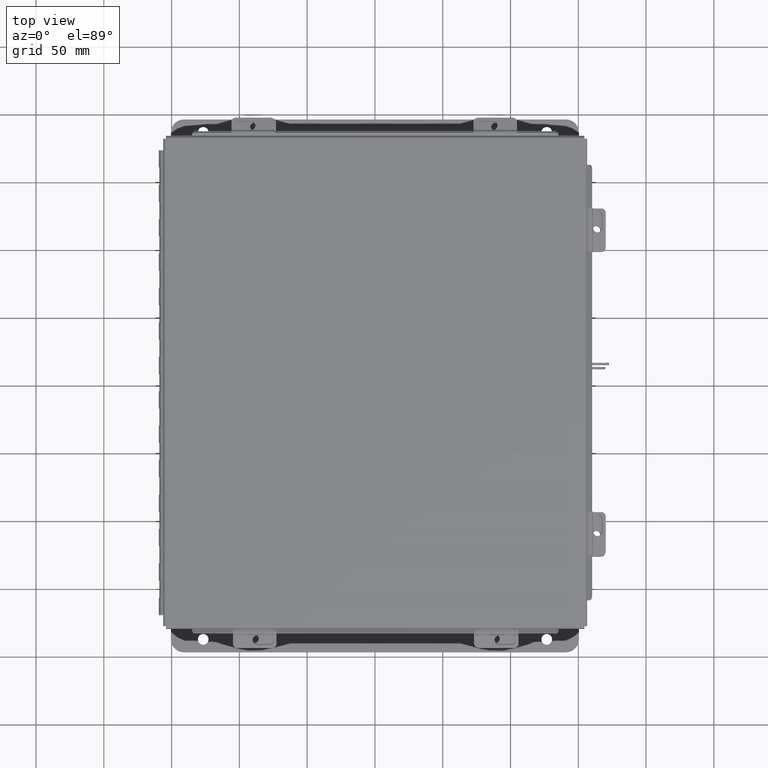
[diagram: clean part render]
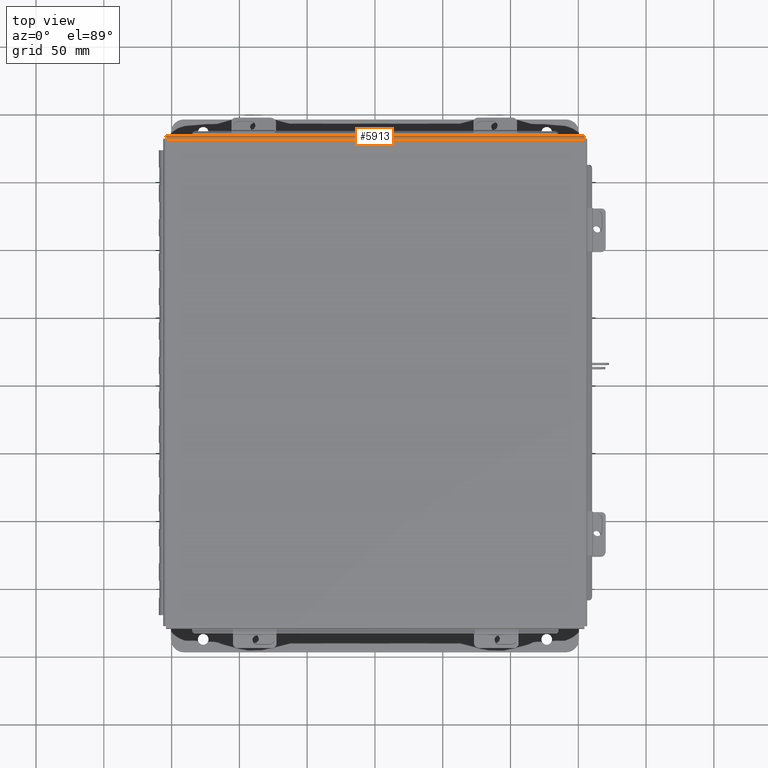
[diagram: same view with one face highlighted and labeled with its STEP entity id]
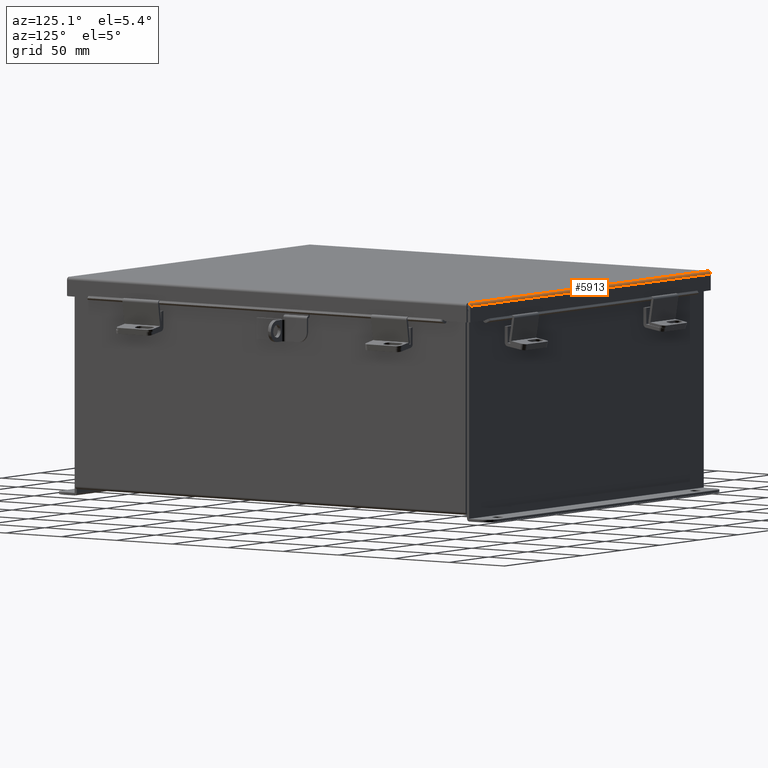
[diagram: same view with one face highlighted and labeled with its STEP entity id]
A machine part, top view. The second image highlights one B-rep face of the part: STEP entity #5913.
A second angle (auxiliary view) of the same face is appended — the face is thin or edge-on in the first view.
In plain terms, the highlighted cylindrical surface (edge-blend (fillet) strip) has radius 2.2276 mm, axis along (1, -0, 0).
Its self-contained STEP definition (entity closure, byte-faithful):
#58 = DIRECTION ( 'NONE',  ( 1.000000000000000000, 0.0000000000000000000, 0.0000000000000000000 ) ) ;
#271 = VECTOR ( 'NONE', #58, 39.37007874015748100 ) ;
#510 = EDGE_CURVE ( 'NONE', #15471, #7963, #6730, .T. ) ;
#733 = CARTESIAN_POINT ( 'NONE',  ( 6.070526310729377400, 7.112717384578527200, -0.06363106625866835100 ) ) ;
#957 = CARTESIAN_POINT ( 'NONE',  ( -6.072502621458756500, 7.145181066258665200, -0.03116738457852799900 ) ) ;
#1290 = CARTESIAN_POINT ( 'NONE',  ( 6.069044077682344000, 7.080029903154992300, -0.07469999999999994700 ) ) ;
#1891 = B_SPLINE_CURVE_WITH_KNOTS ( 'NONE', 3,
 ( #10952, #1290, #9078, #733, #4870, #11393, #10318, #8895, #6215, #3533 ),
 .UNSPECIFIED., .F., .F.,
 ( 4, 2, 2, 2, 4 ),
 ( 0.0000000000000000000, 0.2500000000000000000, 0.5000000000000000000, 0.7500000000000000000, 1.000000000000000000 ),
 .UNSPECIFIED. ) ;
#2051 = EDGE_CURVE ( 'NONE', #18970, #2584, #1891, .T. ) ;
#2253 = CARTESIAN_POINT ( 'NONE',  ( -6.070526310729379200, 7.112717384578528100, -0.06363106625866837800 ) ) ;
#2584 = VERTEX_POINT ( 'NONE', #9789 ) ;
#2722 = EDGE_CURVE ( 'NONE', #7963, #18970, #8085, .T. ) ;
#3533 = CARTESIAN_POINT ( 'NONE',  ( 6.074478932188134700, 7.156249999999999100, 0.01299999999999977400 ) ) ;
#4684 = CARTESIAN_POINT ( 'NONE',  ( -6.074478932188137400, 7.156249999999999100, 0.01299999999999978100 ) ) ;
#4870 = CARTESIAN_POINT ( 'NONE',  ( 6.071020388411723100, 7.122445747341799900, -0.05713078207832041800 ) ) ;
#5913 = ADVANCED_FACE ( 'NONE', ( #13544 ), #17010, .T. ) ;
#6215 = CARTESIAN_POINT ( 'NONE',  ( 6.073984854505790800, 7.156249999999999100, 0.001520096845007091700 ) ) ;
#6246 = ORIENTED_EDGE ( 'NONE', *, *, #510, .F. ) ;
#6264 = ORIENTED_EDGE ( 'NONE', *, *, #2051, .F. ) ;
#6473 = ORIENTED_EDGE ( 'NONE', *, *, #2722, .F. ) ;
#6708 = DIRECTION ( 'NONE',  ( -1.000000000000000000, -0.0000000000000000000, -0.0000000000000000000 ) ) ;
#6730 = B_SPLINE_CURVE_WITH_KNOTS ( 'NONE', 3,
 ( #10138, #16083, #7086, #957, #9818, #18769, #2253, #15868, #16140, #8532 ),
 .UNSPECIFIED., .F., .F.,
 ( 4, 2, 2, 2, 4 ),
 ( 0.0000000000000000000, 0.2500000000000000000, 0.5000000000000000000, 0.7500000000000000000, 1.000000000000000000 ),
 .UNSPECIFIED. ) ;
#7086 = CARTESIAN_POINT ( 'NONE',  ( -6.073490776823450500, 7.153967403743810600, -0.009955289458309056500 ) ) ;
#7335 = CARTESIAN_POINT ( 'NONE',  ( 6.156249999999998200, 7.156249999999999100, 0.01299999999999978100 ) ) ;
#7453 = DIRECTION ( 'NONE',  ( 0.0000000000000000000, 1.000000000000000000, -4.477801015840783100E-015 ) ) ;
#7732 = CARTESIAN_POINT ( 'NONE',  ( -6.074478932188137400, 7.068549999999999200, -0.07469999999999993300 ) ) ;
#7963 = VERTEX_POINT ( 'NONE', #13939 ) ;
#8085 = LINE ( 'NONE', #7732, #271 ) ;
#8421 = AXIS2_PLACEMENT_3D ( 'NONE', #16879, #6708, #7453 ) ;
#8532 = CARTESIAN_POINT ( 'NONE',  ( -6.068550000000000100, 7.068549999999999200, -0.07469999999999993300 ) ) ;
#8767 = DIRECTION ( 'NONE',  ( 1.000000000000000000, -2.487713722829918300E-032, 1.089533968265403200E-046 ) ) ;
#8895 = CARTESIAN_POINT ( 'NONE',  ( 6.073490776823446100, 7.153967403743811500, -0.009955289458309054700 ) ) ;
#9078 = CARTESIAN_POINT ( 'NONE',  ( 6.069538155364690500, 7.091505289458312200, -0.07241740374381121200 ) ) ;
#9789 = CARTESIAN_POINT ( 'NONE',  ( 6.074478932188134700, 7.156249999999999100, 0.01299999999999977400 ) ) ;
#9818 = CARTESIAN_POINT ( 'NONE',  ( -6.072008543776413500, 7.138680782078320200, -0.04089574734180010500 ) ) ;
#10138 = CARTESIAN_POINT ( 'NONE',  ( -6.074478932188137400, 7.156249999999999100, 0.01299999999999978100 ) ) ;
#10190 = LINE ( 'NONE', #7335, #17574 ) ;
#10318 = CARTESIAN_POINT ( 'NONE',  ( 6.072502621458756500, 7.145181066258667000, -0.03116738457852800300 ) ) ;
#10952 = CARTESIAN_POINT ( 'NONE',  ( 6.068550000000000100, 7.068549999999999200, -0.07469999999999880900 ) ) ;
#11393 = CARTESIAN_POINT ( 'NONE',  ( 6.072008543776412600, 7.138680782078320200, -0.04089574734180011200 ) ) ;
#11637 = EDGE_CURVE ( 'NONE', #15471, #2584, #10190, .T. ) ;
#13544 = FACE_OUTER_BOUND ( 'NONE', #17575, .T. ) ;
#13939 = CARTESIAN_POINT ( 'NONE',  ( -6.068550000000000100, 7.068549999999999200, -0.07469999999999993300 ) ) ;
#15471 = VERTEX_POINT ( 'NONE', #4684 ) ;
#15868 = CARTESIAN_POINT ( 'NONE',  ( -6.069538155364689700, 7.091505289458308600, -0.07241740374381121200 ) ) ;
#16083 = CARTESIAN_POINT ( 'NONE',  ( -6.073984854505791700, 7.156249999999999100, 0.001520096845007091700 ) ) ;
#16140 = CARTESIAN_POINT ( 'NONE',  ( -6.069044077682344900, 7.080029903154992300, -0.07469999999999994700 ) ) ;
#16879 = CARTESIAN_POINT ( 'NONE',  ( -6.074478932188137400, 7.068549999999999200, 0.01300000000000016400 ) ) ;
#17010 = CYLINDRICAL_SURFACE ( 'NONE', #8421, 0.08770000000000026400 ) ;
#17317 = CARTESIAN_POINT ( 'NONE',  ( 6.068550000000000100, 7.068549999999999200, -0.07469999999999880900 ) ) ;
#17574 = VECTOR ( 'NONE', #8767, 39.37007874015748100 ) ;
#17575 = EDGE_LOOP ( 'NONE', ( #6473, #6246, #17738, #6264 ) ) ;
#17738 = ORIENTED_EDGE ( 'NONE', *, *, #11637, .T. ) ;
#18769 = CARTESIAN_POINT ( 'NONE',  ( -6.071020388411725800, 7.122445747341798100, -0.05713078207832041800 ) ) ;
#18970 = VERTEX_POINT ( 'NONE', #17317 ) ;